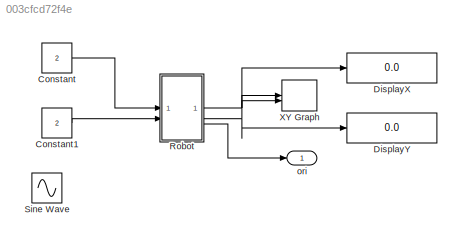
MODEL slx_003cfcd72f4e
KIND model
CONFIG AbsTol = auto
CONFIG EnableMultiTasking = off
CONFIG FixedStep = auto
CONFIG MaxStep = auto
CONFIG MinStep = auto
CONFIG RelTol = 1e-3
CONFIG SampleTimeConstraint = Unconstrained
CONFIG SolverName = ode3
CONFIG StartTime = 0.0
CONFIG StopTime = 100
BLOCK [Constant] Constant
  Value = 2
BLOCK [Constant] Constant1
  Value = 2
BLOCK [Display] DisplayX
  Decimation = 1
BLOCK [Display] DisplayY
  Decimation = 1
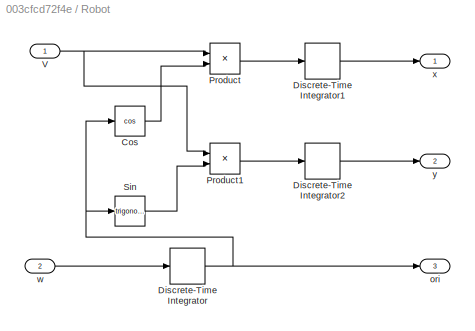
BLOCK [SubSystem] Robot
BLOCK [Trigonometry] Robot/Cos
  Operator = cos
BLOCK [DiscreteIntegrator] Robot/Discrete-Time Integrator
  ICPrevOutput = DiscIntNeverNeededParam
  ICPrevScaledInput = DiscIntNeverNeededParam
  InitialConditionSetting = Auto
  SampleTime = 0.01
BLOCK [DiscreteIntegrator] Robot/Discrete-Time Integrator1
  ICPrevOutput = DiscIntNeverNeededParam
  ICPrevScaledInput = DiscIntNeverNeededParam
  InitialCondition = -4
  InitialConditionSetting = Auto
  SampleTime = 0.01
BLOCK [DiscreteIntegrator] Robot/Discrete-Time Integrator2
  ICPrevOutput = DiscIntNeverNeededParam
  ICPrevScaledInput = DiscIntNeverNeededParam
  InitialCondition = -4
  InitialConditionSetting = Auto
  SampleTime = 0.01
BLOCK [Product] Robot/Product
BLOCK [Product] Robot/Product1
BLOCK [Trigonometry] Robot/Sin
BLOCK [Inport] Robot/V
BLOCK [Outport] Robot/ori
  Port = 3
BLOCK [Inport] Robot/w
  Port = 2
BLOCK [Outport] Robot/x
BLOCK [Outport] Robot/y
  Port = 2
BLOCK [Sin] Sine Wave
  Amplitude = 10
  Frequency = 10
  SampleTime = 0
BLOCK [Record] XY Graph
  CompatibilityTag = XY
  FileSettingsInternal = {"entries":[{"content":{"excelSettings":{"content":{},"type":"Streamout.ExcelSettings"}},"type":"Streamout.FileSettingStorage","uuid":""}],"packageUris":["http:\/\/schema.mathworks.com\/mf0\/streamout_blocks\/R2020a"],"version":"1.0"}
  Layout = [1 1]
  SignalsInternal = {"entries":[{"content":{"signals":[{"content":{"blockPath":[],"dimensions":[1],"domain":"","lineColor":"#a2142f","plots":[1],"port":1,"sid":[""],"signalID":4095,"signalName":"Robot:1"},"type":"RecordBlkView.Signal","uuid":""},{"content":{"blockPath":[],"dimensions":[1],"domain":"","lineColor":"#139fff","plots":[1],"port":2,"sid":[""],"signalID":4099,"signalName":"Robot:2"},"type":"RecordBlkView.Si...<+162ch>
  VisualizationBindings = {"xyplotplugin":{"info":[{"series":[{"bindingParametersList":[{"parameter":"X-Axis","signalID":4095,"signalName":"Robot:1"},{"parameter":"Y-Axis","signalID":4099,"signalName":"Robot:2"}],"seriesID":193}],"subplotID":1}]}}
BLOCK [Outport] ori
LINE Constant1:1 -> Robot:2
LINE Constant:1 -> Robot:1
LINE Robot/Cos:1 -> Robot/Product:2
LINE Robot/Discrete-Time Integrator1:1 -> Robot/x:1
LINE Robot/Discrete-Time Integrator2:1 -> Robot/y:1
NET Robot/Discrete-Time Integrator:1 -> Robot/Cos:1, Robot/Sin:1, Robot/ori:1
LINE Robot/Product1:1 -> Robot/Discrete-Time Integrator2:1
LINE Robot/Product:1 -> Robot/Discrete-Time Integrator1:1
LINE Robot/Sin:1 -> Robot/Product1:2
NET Robot/V:1 -> Robot/Product1:1, Robot/Product:1
LINE Robot/w:1 -> Robot/Discrete-Time Integrator:1
NET Robot:1 -> DisplayX:1, XY Graph:1
NET Robot:2 -> DisplayY:1, XY Graph:2
LINE Robot:3 -> ori:1
note: NET lines group one-source signal fan-out (src -> all destinations, sorted); 1:1 wires keep LINE
